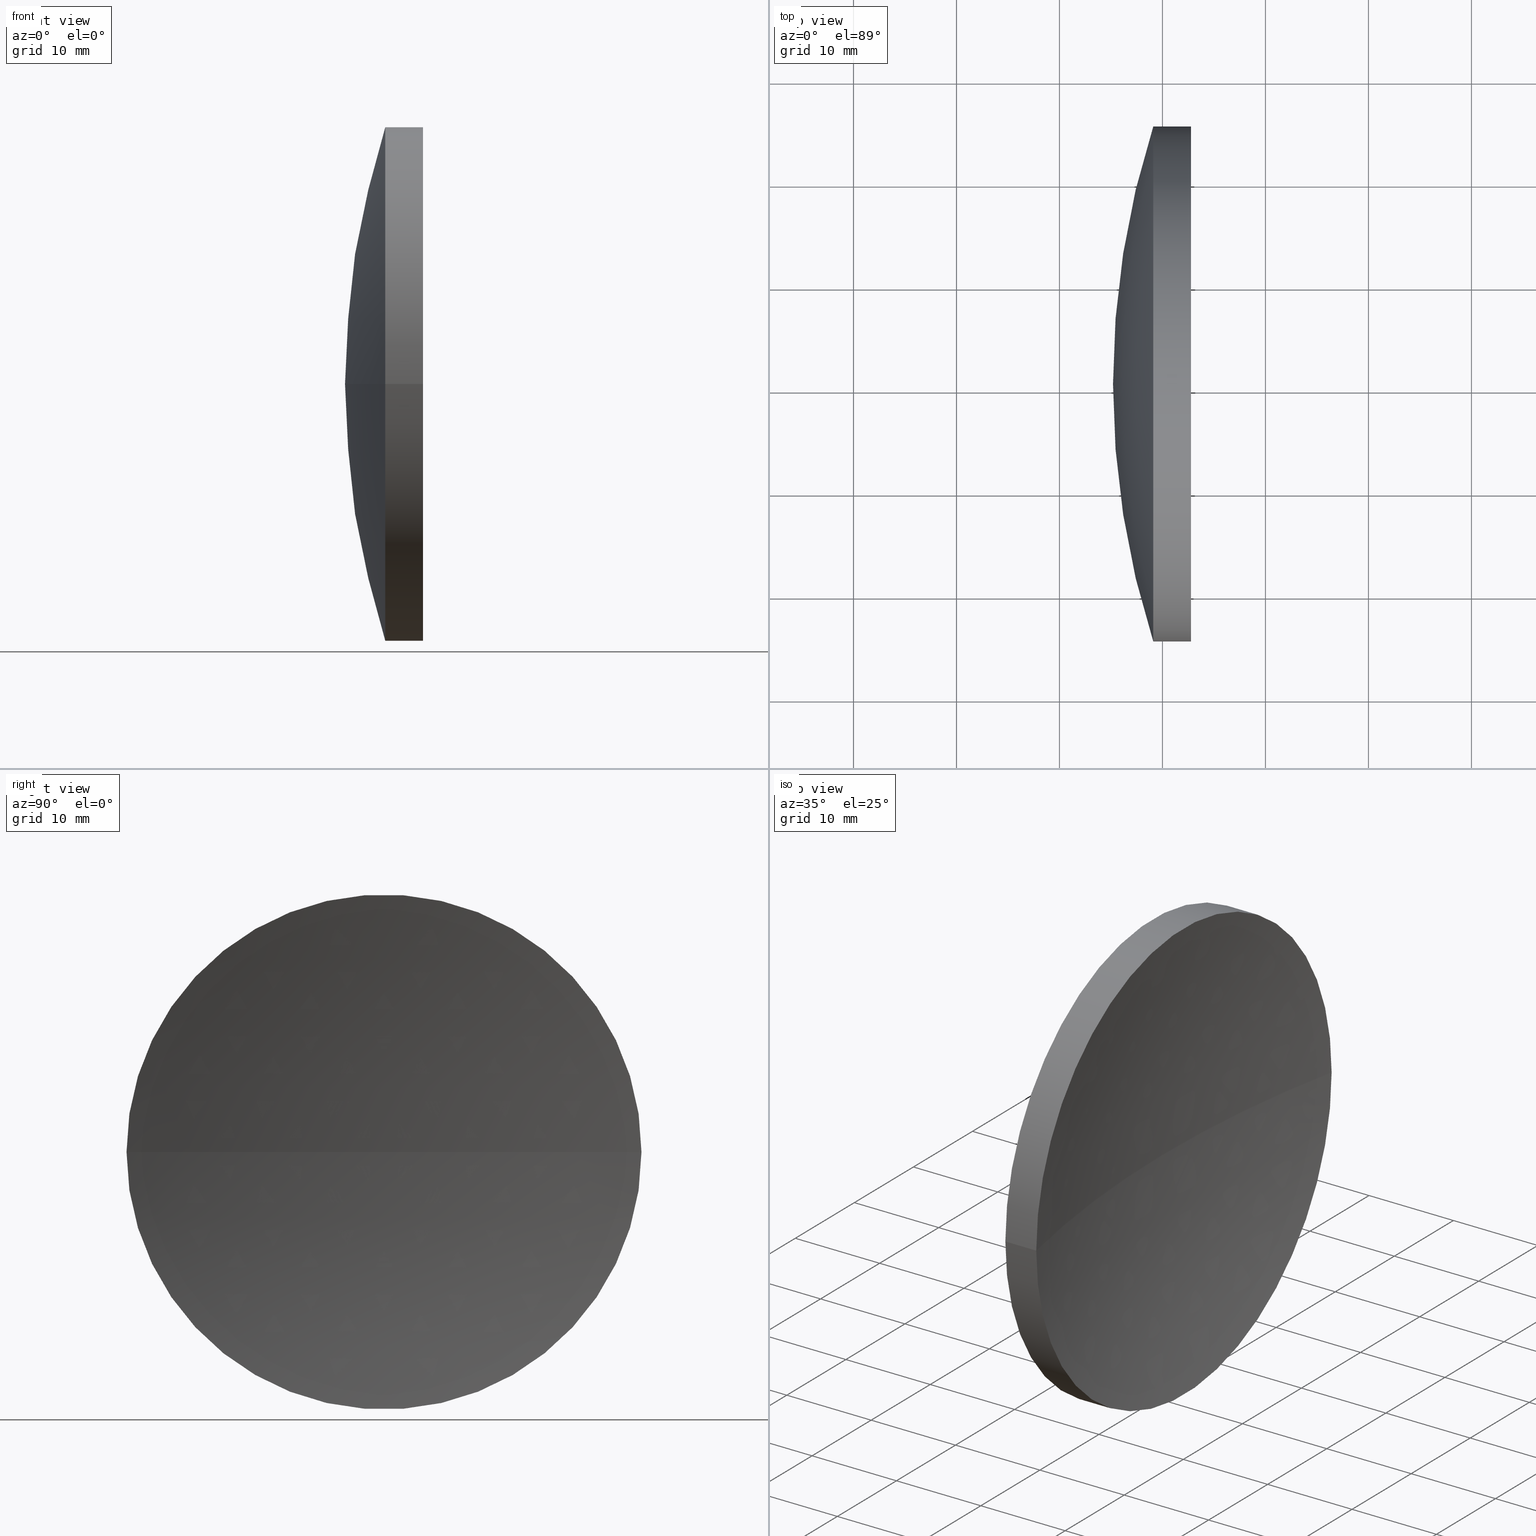
[diagram: canonical four-view strip — front | top / right | iso, engineering-drawing reading convention]
A machine part, canonical four-view strip (front | top / right | iso — engineering-drawing reading convention). The complete STEP part file that produces these views, byte-faithful:
ISO-10303-21;
HEADER;
FILE_DESCRIPTION (( 'STEP AP214' ),
    '1' );
FILE_NAME ('150054.STEP',
    '2019-07-05T09:05:53',
    ( '' ),
    ( '' ),
    'SwSTEP 2.0',
    'SolidWorks 2016',
    '' );
FILE_SCHEMA (( 'AUTOMOTIVE_DESIGN' ));
ENDSEC;

DATA;
#1 = EDGE_CURVE ( 'NONE', #53, #113, #2, .T. ) ;
#2 = CIRCLE ( 'NONE', #134, 122.8000000000000000 ) ;
#3 = CIRCLE ( 'NONE', #96, 81.90000000000000600 ) ;
#4 = ORIENTED_EDGE ( 'NONE', *, *, #165, .T. ) ;
#5 = VERTEX_POINT ( 'NONE', #40 ) ;
#6 = AXIS2_PLACEMENT_3D ( 'NONE', #10, #127, #70 ) ;
#7 = AXIS2_PLACEMENT_3D ( 'NONE', #72, #116, #100 ) ;
#8 = EDGE_LOOP ( 'NONE', ( #126, #147, #78 ) ) ;
#9 = CARTESIAN_POINT ( 'NONE',  ( 252.7707128095205700, 130.4336809418806800, 0.0000000000000000000 ) ) ;
#10 = CARTESIAN_POINT ( 'NONE',  ( 231.8889825959263400, 130.4336809418806500, 0.0000000000000000000 ) ) ;
#11 = VERTEX_POINT ( 'NONE', #153 ) ;
#12 = DIRECTION ( 'NONE',  ( 1.000000000000000000, 0.0000000000000000000, 0.0000000000000000000 ) ) ;
#13 = DIRECTION ( 'NONE',  ( -1.000000000000000000, -6.937607244762875000E-016, -0.0000000000000000000 ) ) ;
#14 = DIRECTION ( 'NONE',  ( -6.777918343254923500E-016, 1.000000000000000000, 0.0000000000000000000 ) ) ;
#15 = CARTESIAN_POINT ( 'NONE',  ( 250.1989956717489700, 130.4336809418805100, 0.0000000000000000000 ) ) ;
#16 = DIRECTION ( 'NONE',  ( 1.110223024625161100E-015, -1.000000000000000000, 0.0000000000000000000 ) ) ;
#17 = AXIS2_PLACEMENT_3D ( 'NONE', #158, #71, #176 ) ;
#18 = AXIS2_PLACEMENT_3D ( 'NONE', #128, #99, #14 ) ;
#19 = UNCERTAINTY_MEASURE_WITH_UNIT (LENGTH_MEASURE( 1.000000000000000100E-005 ), #84, 'distance_accuracy_value', 'NONE');
#20 = CIRCLE ( 'NONE', #192, 24.99999999999989700 ) ;
#21 = CARTESIAN_POINT ( 'NONE',  ( 372.9989956717490100, 130.4336809418806000, 0.0000000000000000000 ) ) ;
#22 = PRESENTATION_STYLE_ASSIGNMENT (( #172 ) ) ;
#23 = CARTESIAN_POINT ( 'NONE',  ( 252.7707128095205700, 105.4336809418806800, -3.061616997868363700E-015 ) ) ;
#24 = EDGE_CURVE ( 'NONE', #48, #53, #20, .T. ) ;
#25 = CARTESIAN_POINT ( 'NONE',  ( 0.0000000000000000000, 0.0000000000000000000, 0.0000000000000000000 ) ) ;
#26 =( GEOMETRIC_REPRESENTATION_CONTEXT ( 3 ) GLOBAL_UNCERTAINTY_ASSIGNED_CONTEXT ( ( #183 ) ) GLOBAL_UNIT_ASSIGNED_CONTEXT ( ( #47, #130, #190 ) ) REPRESENTATION_CONTEXT ( 'NONE', 'WORKASPACE' ) );
#27 = CIRCLE ( 'NONE', #66, 24.99999999999989700 ) ;
#28 = DIRECTION ( 'NONE',  ( -1.000000000000000000, -6.937607244762875000E-016, -0.0000000000000000000 ) ) ;
#29 = DIRECTION ( 'NONE',  ( -8.496118506040342700E-032, 1.224646799147353200E-016, -1.000000000000000000 ) ) ;
#30 =( LENGTH_UNIT ( ) NAMED_UNIT ( * ) SI_UNIT ( .MILLI., .METRE. ) );
#31 = SURFACE_SIDE_STYLE ('',( #191 ) ) ;
#32 = MANIFOLD_SOLID_BREP ( '��ת1', #64 ) ;
#33 = SPHERICAL_SURFACE ( 'NONE', #180, 122.8000000000000300 ) ;
#34 = CYLINDRICAL_SURFACE ( 'NONE', #7, 24.99999999999989700 ) ;
#35 = ORIENTED_EDGE ( 'NONE', *, *, #94, .F. ) ;
#36 = EDGE_CURVE ( 'NONE', #48, #113, #168, .T. ) ;
#37 = EDGE_LOOP ( 'NONE', ( #148, #4, #152 ) ) ;
#38 = PRESENTATION_LAYER_ASSIGNMENT (  '', '', ( #111 ) ) ;
#39 = FACE_OUTER_BOUND ( 'NONE', #92, .T. ) ;
#40 = CARTESIAN_POINT ( 'NONE',  ( 245.1989956717489500, 130.4336809418805100, 0.0000000000000000000 ) ) ;
#41 = ADVANCED_FACE ( 'NONE', ( #39 ), #33, .F. ) ;
#42 = SURFACE_SIDE_STYLE ('',( #109 ) ) ;
#43 =( NAMED_UNIT ( * ) SI_UNIT ( $, .STERADIAN. ) SOLID_ANGLE_UNIT ( ) );
#44 = DIRECTION ( 'NONE',  ( -8.496118506040342700E-032, 1.224646799147353200E-016, -1.000000000000000000 ) ) ;
#45 = CARTESIAN_POINT ( 'NONE',  ( 249.1079064371447200, 130.4336809418806500, 0.0000000000000000000 ) ) ;
#46 = APPLICATION_PROTOCOL_DEFINITION ( 'draft international standard', 'automotive_design', 1998, #104 ) ;
#47 =( LENGTH_UNIT ( ) NAMED_UNIT ( * ) SI_UNIT ( .MILLI., .METRE. ) );
#48 = VERTEX_POINT ( 'NONE', #83 ) ;
#49 = AXIS2_PLACEMENT_3D ( 'NONE', #86, #88, #188 ) ;
#50 = ORIENTED_EDGE ( 'NONE', *, *, #175, .F. ) ;
#51 = SPHERICAL_SURFACE ( 'NONE', #170, 81.90000000000000600 ) ;
#52 = FILL_AREA_STYLE ('',( #82 ) ) ;
#53 = VERTEX_POINT ( 'NONE', #23 ) ;
#54 = PRODUCT_DEFINITION_SHAPE ( 'NONE', 'NONE',  #125 ) ;
#55 = DIRECTION ( 'NONE',  ( 0.0000000000000000000, 0.0000000000000000000, 1.000000000000000000 ) ) ;
#56 = PRODUCT_DEFINITION_FORMATION_WITH_SPECIFIED_SOURCE ( '�κ�', '', #107, .NOT_KNOWN. ) ;
#57 = DIRECTION ( 'NONE',  ( 0.0000000000000000000, 1.000000000000000000, 1.224646799147353500E-016 ) ) ;
#58 = CARTESIAN_POINT ( 'NONE',  ( 249.1079064371447200, 130.4336809418806500, 0.0000000000000000000 ) ) ;
#59 = DIRECTION ( 'NONE',  ( 0.0000000000000000000, 1.000000000000000000, 1.224646799147353000E-016 ) ) ;
#60 = AXIS2_PLACEMENT_3D ( 'NONE', #97, #174, #12 ) ;
#61 = APPLICATION_PROTOCOL_DEFINITION ( 'draft international standard', 'automotive_design', 1998, #184 ) ;
#62 = SHAPE_DEFINITION_REPRESENTATION ( #54, #137 ) ;
#63 = FACE_OUTER_BOUND ( 'NONE', #74, .T. ) ;
#64 = CLOSED_SHELL ( 'NONE', ( #89, #41, #105, #161, #131, #143 ) ) ;
#65 = CIRCLE ( 'NONE', #49, 81.89999999999997700 ) ;
#66 = AXIS2_PLACEMENT_3D ( 'NONE', #58, #106, #160 ) ;
#67 = ORIENTED_EDGE ( 'NONE', *, *, #36, .T. ) ;
#68 = DIRECTION ( 'NONE',  ( -1.000000000000000000, -6.937607244762875000E-016, -0.0000000000000000000 ) ) ;
#69 =( NAMED_UNIT ( * ) PLANE_ANGLE_UNIT ( ) SI_UNIT ( $, .RADIAN. ) );
#70 = DIRECTION ( 'NONE',  ( 1.110223024625161100E-015, -1.000000000000000000, 0.0000000000000000000 ) ) ;
#71 = DIRECTION ( 'NONE',  ( 0.0000000000000000000, 0.0000000000000000000, -1.000000000000000000 ) ) ;
#72 = CARTESIAN_POINT ( 'NONE',  ( 231.8889825959263400, 130.4336809418806500, 0.0000000000000000000 ) ) ;
#73 = ORIENTED_EDGE ( 'NONE', *, *, #1, .T. ) ;
#74 = EDGE_LOOP ( 'NONE', ( #35, #115, #119, #151 ) ) ;
#75 = PRODUCT_RELATED_PRODUCT_CATEGORY ( 'part', '', ( #107 ) ) ;
#76 = AXIS2_PLACEMENT_3D ( 'NONE', #45, #141, #16 ) ;
#77 = FACE_OUTER_BOUND ( 'NONE', #8, .T. ) ;
#78 = ORIENTED_EDGE ( 'NONE', *, *, #112, .T. ) ;
#79 = STYLED_ITEM ( 'NONE', ( #22 ), #32 ) ;
#80 = PRODUCT_DEFINITION_CONTEXT ( 'detailed design', #104, 'design' ) ;
#81 = ORIENTED_EDGE ( 'NONE', *, *, #120, .F. ) ;
#82 = FILL_AREA_STYLE_COLOUR ( '', #138 ) ;
#83 = CARTESIAN_POINT ( 'NONE',  ( 252.7707128095205700, 155.4336809418805400, 0.0000000000000000000 ) ) ;
#84 =( LENGTH_UNIT ( ) NAMED_UNIT ( * ) SI_UNIT ( .MILLI., .METRE. ) );
#85 = FILL_AREA_STYLE_COLOUR ( '', #110 ) ;
#86 = CARTESIAN_POINT ( 'NONE',  ( 327.0989956717489200, 130.4336809418805700, 0.0000000000000000000 ) ) ;
#87 = PRODUCT_CONTEXT ( 'NONE', #184, 'mechanical' ) ;
#88 = DIRECTION ( 'NONE',  ( -0.0000000000000000000, 0.0000000000000000000, 1.000000000000000000 ) ) ;
#89 = ADVANCED_FACE ( 'NONE', ( #145 ), #122, .T. ) ;
#90 = AXIS2_PLACEMENT_3D ( 'NONE', #102, #28, #132 ) ;
#91 = ORIENTED_EDGE ( 'NONE', *, *, #1, .F. ) ;
#92 = EDGE_LOOP ( 'NONE', ( #81, #73, #173 ) ) ;
#93 = MECHANICAL_DESIGN_GEOMETRIC_PRESENTATION_REPRESENTATION (  '', ( #79 ), #169 ) ;
#94 = EDGE_CURVE ( 'NONE', #48, #129, #136, .T. ) ;
#95 = FACE_OUTER_BOUND ( 'NONE', #37, .T. ) ;
#96 = AXIS2_PLACEMENT_3D ( 'NONE', #157, #29, #59 ) ;
#97 = CARTESIAN_POINT ( 'NONE',  ( 372.9989956717490100, 130.4336809418806000, 0.0000000000000000000 ) ) ;
#98 = DIRECTION ( 'NONE',  ( 0.0000000000000000000, 0.0000000000000000000, -1.000000000000000000 ) ) ;
#99 = DIRECTION ( 'NONE',  ( -0.0000000000000000000, 0.0000000000000000000, -1.000000000000000000 ) ) ;
#100 = DIRECTION ( 'NONE',  ( 1.110223024625161100E-015, -1.000000000000000000, 0.0000000000000000000 ) ) ;
#101 = CARTESIAN_POINT ( 'NONE',  ( 231.8889825959263100, 155.4336809418805400, 3.061616997868370400E-015 ) ) ;
#102 = CARTESIAN_POINT ( 'NONE',  ( 252.7707128095205700, 130.4336809418806800, 0.0000000000000000000 ) ) ;
#103 = CIRCLE ( 'NONE', #90, 24.99999999999989700 ) ;
#104 = APPLICATION_CONTEXT ( 'automotive_design' ) ;
#105 = ADVANCED_FACE ( 'NONE', ( #95 ), #118, .T. ) ;
#106 = DIRECTION ( 'NONE',  ( -1.000000000000000000, -6.937607244762875000E-016, -0.0000000000000000000 ) ) ;
#107 = PRODUCT ( '150054', '150054', '', ( #87 ) ) ;
#108 = VECTOR ( 'NONE', #13, 1000.000000000000000 ) ;
#109 = SURFACE_STYLE_FILL_AREA ( #52 ) ;
#110 = COLOUR_RGB ( '',1.000000000000000000, 1.000000000000000000, 1.000000000000000000 ) ;
#111 = STYLED_ITEM ( 'NONE', ( #135 ), #137 ) ;
#112 = EDGE_CURVE ( 'NONE', #129, #5, #65, .T. ) ;
#113 = VERTEX_POINT ( 'NONE', #15 ) ;
#114 = CARTESIAN_POINT ( 'NONE',  ( 249.1079064371446900, 155.4336809418805400, 0.0000000000000000000 ) ) ;
#115 = ORIENTED_EDGE ( 'NONE', *, *, #24, .T. ) ;
#116 = DIRECTION ( 'NONE',  ( -1.000000000000000000, -6.937607244762875000E-016, -0.0000000000000000000 ) ) ;
#117 = MECHANICAL_DESIGN_GEOMETRIC_PRESENTATION_REPRESENTATION (  '', ( #111 ), #185 ) ;
#118 = SPHERICAL_SURFACE ( 'NONE', #18, 81.90000000000000600 ) ;
#119 = ORIENTED_EDGE ( 'NONE', *, *, #175, .T. ) ;
#120 = EDGE_CURVE ( 'NONE', #53, #48, #103, .T. ) ;
#121 = ORIENTED_EDGE ( 'NONE', *, *, #124, .F. ) ;
#122 = CYLINDRICAL_SURFACE ( 'NONE', #6, 24.99999999999989700 ) ;
#123 = EDGE_LOOP ( 'NONE', ( #155, #164, #121, #50 ) ) ;
#124 = EDGE_CURVE ( 'NONE', #11, #129, #27, .T. ) ;
#125 = PRODUCT_DEFINITION ( 'δ֪', '', #56, #80 ) ;
#126 = ORIENTED_EDGE ( 'NONE', *, *, #165, .F. ) ;
#127 = DIRECTION ( 'NONE',  ( -1.000000000000000000, -6.937607244762875000E-016, -0.0000000000000000000 ) ) ;
#128 = CARTESIAN_POINT ( 'NONE',  ( 327.0989956717489200, 130.4336809418805700, 0.0000000000000000000 ) ) ;
#129 = VERTEX_POINT ( 'NONE', #114 ) ;
#130 =( NAMED_UNIT ( * ) PLANE_ANGLE_UNIT ( ) SI_UNIT ( $, .RADIAN. ) );
#131 = ADVANCED_FACE ( 'NONE', ( #162 ), #179, .F. ) ;
#132 = DIRECTION ( 'NONE',  ( 0.0000000000000000000, -1.000000000000000000, 0.0000000000000000000 ) ) ;
#133 = FILL_AREA_STYLE ('',( #85 ) ) ;
#134 = AXIS2_PLACEMENT_3D ( 'NONE', #21, #44, #57 ) ;
#135 = PRESENTATION_STYLE_ASSIGNMENT (( #140 ) ) ;
#136 = LINE ( 'NONE', #101, #181 ) ;
#137 = ADVANCED_BREP_SHAPE_REPRESENTATION ( '150054', ( #32, #178 ), #26 ) ;
#138 = COLOUR_RGB ( '',1.000000000000000000, 1.000000000000000000, 1.000000000000000000 ) ;
#139 = EDGE_CURVE ( 'NONE', #129, #11, #177, .T. ) ;
#140 = SURFACE_STYLE_USAGE ( .BOTH. , #31 ) ;
#141 = DIRECTION ( 'NONE',  ( -1.000000000000000000, -6.937607244762875000E-016, -0.0000000000000000000 ) ) ;
#142 = DIRECTION ( 'NONE',  ( -6.777918343254923500E-016, 1.000000000000000000, 0.0000000000000000000 ) ) ;
#143 = ADVANCED_FACE ( 'NONE', ( #63 ), #34, .T. ) ;
#144 = DIRECTION ( 'NONE',  ( 1.000000000000000000, 0.0000000000000000000, 0.0000000000000000000 ) ) ;
#145 = FACE_OUTER_BOUND ( 'NONE', #123, .T. ) ;
#146 = ORIENTED_EDGE ( 'NONE', *, *, #24, .F. ) ;
#147 = ORIENTED_EDGE ( 'NONE', *, *, #124, .T. ) ;
#148 = ORIENTED_EDGE ( 'NONE', *, *, #139, .T. ) ;
#149 = PRESENTATION_LAYER_ASSIGNMENT (  '', '', ( #79 ) ) ;
#150 = UNCERTAINTY_MEASURE_WITH_UNIT (LENGTH_MEASURE( 1.000000000000000100E-005 ), #30, 'distance_accuracy_value', 'NONE');
#151 = ORIENTED_EDGE ( 'NONE', *, *, #139, .F. ) ;
#152 = ORIENTED_EDGE ( 'NONE', *, *, #112, .F. ) ;
#153 = CARTESIAN_POINT ( 'NONE',  ( 249.1079064371447200, 105.4336809418806500, -3.061616997868367700E-015 ) ) ;
#154 = DIRECTION ( 'NONE',  ( -9.040904109325379100E-016, 1.000000000000000000, 0.0000000000000000000 ) ) ;
#155 = ORIENTED_EDGE ( 'NONE', *, *, #120, .T. ) ;
#156 = DIRECTION ( 'NONE',  ( 0.0000000000000000000, -1.000000000000000000, 0.0000000000000000000 ) ) ;
#157 = CARTESIAN_POINT ( 'NONE',  ( 327.0989956717489200, 130.4336809418805700, 0.0000000000000000000 ) ) ;
#158 = CARTESIAN_POINT ( 'NONE',  ( 372.9989956717490100, 130.4336809418806000, 0.0000000000000000000 ) ) ;
#159 = CARTESIAN_POINT ( 'NONE',  ( 231.8889825959263600, 105.4336809418807500, 0.0000000000000000000 ) ) ;
#160 = DIRECTION ( 'NONE',  ( 1.110223024625161100E-015, -1.000000000000000000, 0.0000000000000000000 ) ) ;
#161 = ADVANCED_FACE ( 'NONE', ( #77 ), #51, .T. ) ;
#162 = FACE_OUTER_BOUND ( 'NONE', #166, .T. ) ;
#163 = DIRECTION ( 'NONE',  ( -0.0000000000000000000, 0.0000000000000000000, -1.000000000000000000 ) ) ;
#164 = ORIENTED_EDGE ( 'NONE', *, *, #94, .T. ) ;
#165 = EDGE_CURVE ( 'NONE', #11, #5, #3, .T. ) ;
#166 = EDGE_LOOP ( 'NONE', ( #91, #146, #67 ) ) ;
#167 = LINE ( 'NONE', #159, #108 ) ;
#168 = CIRCLE ( 'NONE', #60, 122.8000000000000300 ) ;
#169 =( GEOMETRIC_REPRESENTATION_CONTEXT ( 3 ) GLOBAL_UNCERTAINTY_ASSIGNED_CONTEXT ( ( #19 ) ) GLOBAL_UNIT_ASSIGNED_CONTEXT ( ( #84, #69, #186 ) ) REPRESENTATION_CONTEXT ( 'NONE', 'WORKASPACE' ) );
#170 = AXIS2_PLACEMENT_3D ( 'NONE', #187, #163, #142 ) ;
#171 = DIRECTION ( 'NONE',  ( -1.000000000000000000, -6.937607244762875000E-016, -0.0000000000000000000 ) ) ;
#172 = SURFACE_STYLE_USAGE ( .BOTH. , #42 ) ;
#173 = ORIENTED_EDGE ( 'NONE', *, *, #36, .F. ) ;
#174 = DIRECTION ( 'NONE',  ( 0.0000000000000000000, -0.0000000000000000000, 1.000000000000000000 ) ) ;
#175 = EDGE_CURVE ( 'NONE', #53, #11, #167, .T. ) ;
#176 = DIRECTION ( 'NONE',  ( -9.040904109325379100E-016, 1.000000000000000000, 0.0000000000000000000 ) ) ;
#177 = CIRCLE ( 'NONE', #76, 24.99999999999989700 ) ;
#178 = AXIS2_PLACEMENT_3D ( 'NONE', #25, #55, #144 ) ;
#179 = SPHERICAL_SURFACE ( 'NONE', #17, 122.8000000000000300 ) ;
#180 = AXIS2_PLACEMENT_3D ( 'NONE', #182, #98, #154 ) ;
#181 = VECTOR ( 'NONE', #68, 1000.000000000000000 ) ;
#182 = CARTESIAN_POINT ( 'NONE',  ( 372.9989956717490100, 130.4336809418806000, 0.0000000000000000000 ) ) ;
#183 = UNCERTAINTY_MEASURE_WITH_UNIT (LENGTH_MEASURE( 1.000000000000000100E-005 ), #47, 'distance_accuracy_value', 'NONE');
#184 = APPLICATION_CONTEXT ( 'automotive_design' ) ;
#185 =( GEOMETRIC_REPRESENTATION_CONTEXT ( 3 ) GLOBAL_UNCERTAINTY_ASSIGNED_CONTEXT ( ( #150 ) ) GLOBAL_UNIT_ASSIGNED_CONTEXT ( ( #30, #189, #43 ) ) REPRESENTATION_CONTEXT ( 'NONE', 'WORKASPACE' ) );
#186 =( NAMED_UNIT ( * ) SI_UNIT ( $, .STERADIAN. ) SOLID_ANGLE_UNIT ( ) );
#187 = CARTESIAN_POINT ( 'NONE',  ( 327.0989956717489200, 130.4336809418805700, 0.0000000000000000000 ) ) ;
#188 = DIRECTION ( 'NONE',  ( 1.000000000000000000, 0.0000000000000000000, 0.0000000000000000000 ) ) ;
#189 =( NAMED_UNIT ( * ) PLANE_ANGLE_UNIT ( ) SI_UNIT ( $, .RADIAN. ) );
#190 =( NAMED_UNIT ( * ) SI_UNIT ( $, .STERADIAN. ) SOLID_ANGLE_UNIT ( ) );
#191 = SURFACE_STYLE_FILL_AREA ( #133 ) ;
#192 = AXIS2_PLACEMENT_3D ( 'NONE', #9, #171, #156 ) ;
ENDSEC;
END-ISO-10303-21;
